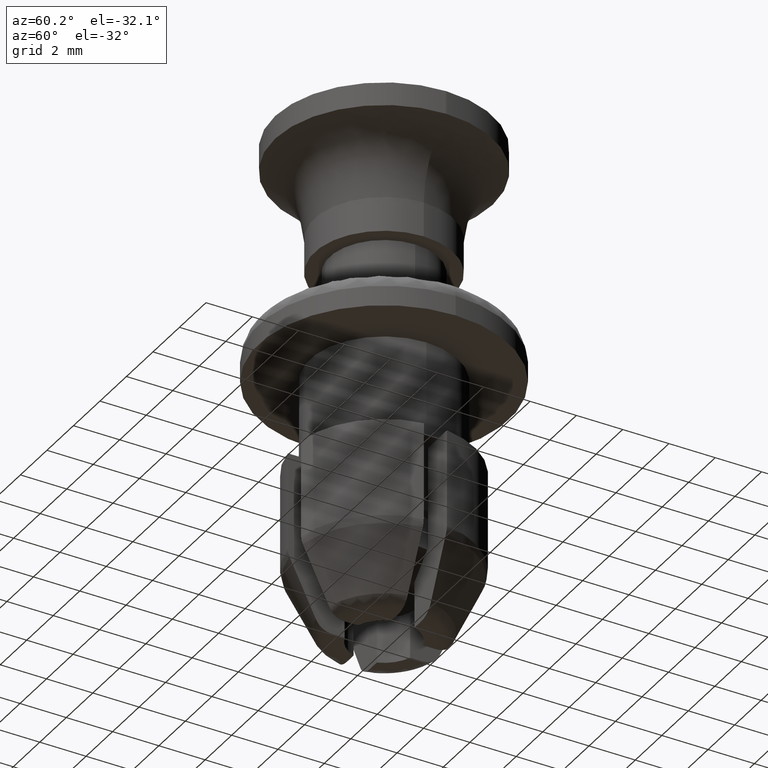
[diagram: clean part render]
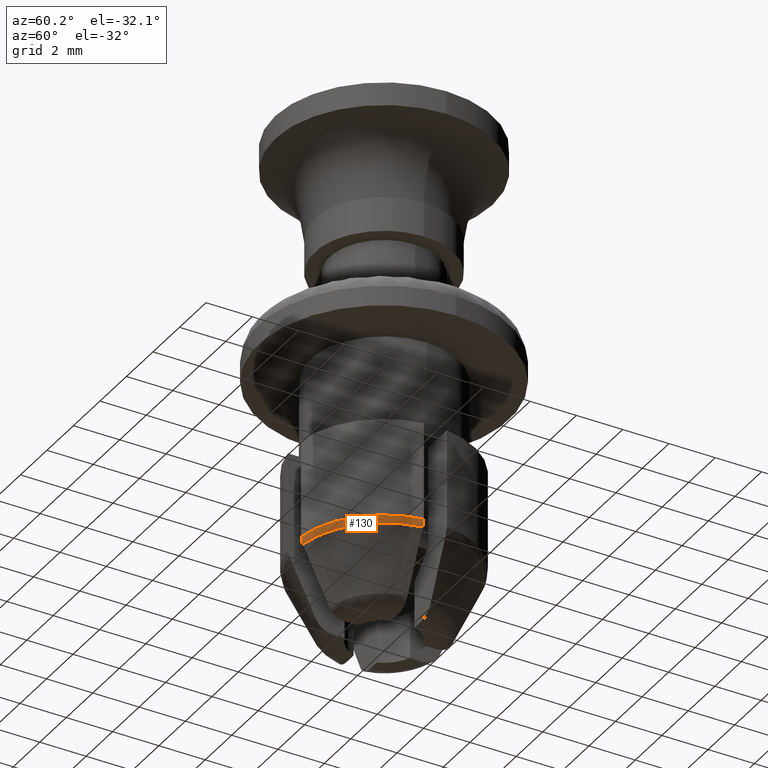
[diagram: same view with one face highlighted and labeled with its STEP entity id]
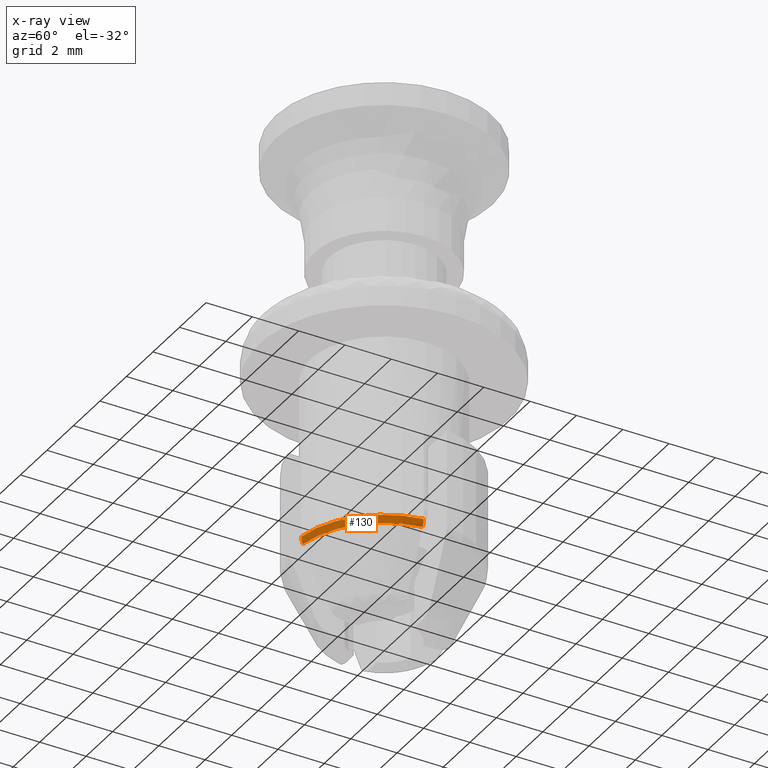
[diagram: x-ray of the same camera — body ghosted, the highlighted face saturated]
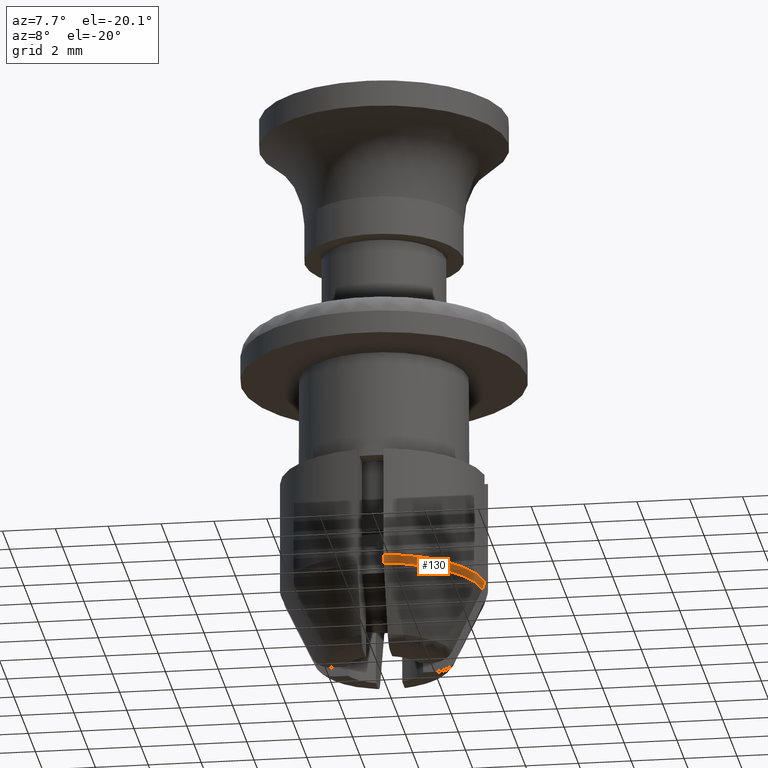
[diagram: same view with one face highlighted and labeled with its STEP entity id]
A machine part, auxiliary view. The second image highlights one B-rep face of the part: STEP entity #130.
The next image is the same camera in x-ray: the body ghosted, the highlighted face saturated — about 0% of this face is hidden behind the body in this view.
A second angle (auxiliary view) of the same face is appended — the face is thin or edge-on in the first view.
In plain terms, the highlighted face is a freeform B-spline surface patch.
Its self-contained STEP definition (entity closure, byte-faithful):
#130=ADVANCED_FACE('',(#373),#372,.T.);
#372=( BOUNDED_SURFACE() B_SPLINE_SURFACE( 2,2,((#1127,#1128,#1129),(#1130,#1131,#1132),(#1133,#1134,#1135)), .UNSPECIFIED.,.F.,.F.,.F.) B_SPLINE_SURFACE_WITH_KNOTS((3,3),(3,3),(-3.45587652759E-04,4.38582706572E-01),(5.42611465959E-02,1.35767719416E+00), .UNSPECIFIED. ) GEOMETRIC_REPRESENTATION_ITEM() RATIONAL_B_SPLINE_SURFACE(((9.82335015752E-01,7.78647726664E-01,9.82334278491E-01),(9.27160542922E-01,7.34913687716E-01,9.27159847071E-01),(9.18228176591E-01,7.27833448667E-01,9.18227487443E-01))) REPRESENTATION_ITEM('') SURFACE() );
#373=FACE_OUTER_BOUND('',#1136,.T.);
#1127=CARTESIAN_POINT('',(5.04588755566E-01,-3.86721994643E+00,-1.03338710596E+01));
#1128=CARTESIAN_POINT('',(3.47910899739E+00,-3.47910923951E+00,-1.03338710596E+01));
#1129=CARTESIAN_POINT('',(3.86721991132E+00,-5.04589024698E-01,-1.03338710596E+01));
#1130=CARTESIAN_POINT('',(5.04596194412E-01,-3.86727695851E+00,-1.05002407967E+01));
#1131=CARTESIAN_POINT('',(3.47916028778E+00,-3.47916052991E+00,-1.05002407967E+01));
#1132=CARTESIAN_POINT('',(3.86727692339E+00,-5.04596463548E-01,-1.05002407967E+01));
#1133=CARTESIAN_POINT('',(4.95493158585E-01,-3.79751035881E+00,-1.06510010336E+01));
#1134=CARTESIAN_POINT('',(3.41639540549E+00,-3.41639564325E+00,-1.06510010336E+01));
#1135=CARTESIAN_POINT('',(3.79751032433E+00,-4.95493422866E-01,-1.06510010336E+01));
#1136=EDGE_LOOP('',(#1734,#1735,#1736,#1737));
#1734=ORIENTED_EDGE('',*,*,#2085,.F.);
#1735=ORIENTED_EDGE('',*,*,#2105,.T.);
#1736=ORIENTED_EDGE('',*,*,#2069,.F.);
#1737=ORIENTED_EDGE('',*,*,#2106,.F.);
#2069=EDGE_CURVE('',#2628,#2635,#2636,.T.);
#2085=EDGE_CURVE('',#2738,#2745,#2746,.T.);
#2105=EDGE_CURVE('',#2738,#2635,#2876,.T.);
#2106=EDGE_CURVE('',#2745,#2628,#2882,.T.);
#2628=VERTEX_POINT('',#3801);
#2635=VERTEX_POINT('',#3806);
#2636=(BOUNDED_CURVE() B_SPLINE_CURVE(3,(#3807,#3808,#3809,#3810,#3811,#3812),.UNSPECIFIED.,.F.,.F.) B_SPLINE_CURVE_WITH_KNOTS((4,2,4),(4.60532861707E-03,4.76814485432E-03,4.93096109157E-03),.UNSPECIFIED.) CURVE() GEOMETRIC_REPRESENTATION_ITEM() RATIONAL_B_SPLINE_CURVE((1.00000000000E+00,1.00000000000E+00,1.00000000000E+00,1.00000000000E+00,1.00000000000E+00,1.00000000000E+00)) REPRESENTATION_ITEM('') );
#2738=VERTEX_POINT('',#3875);
#2745=VERTEX_POINT('',#3879);
#2746=(BOUNDED_CURVE() B_SPLINE_CURVE(3,(#3880,#3881,#3882,#3883,#3884,#3885),.UNSPECIFIED.,.F.,.F.) B_SPLINE_CURVE_WITH_KNOTS((4,2,4),(2.52815349468E-03,2.69109019946E-03,2.85402690424E-03),.UNSPECIFIED.) CURVE() GEOMETRIC_REPRESENTATION_ITEM() RATIONAL_B_SPLINE_CURVE((1.00000000000E+00,1.00000000000E+00,1.00000000000E+00,1.00000000000E+00,1.00000000000E+00,1.00000000000E+00)) REPRESENTATION_ITEM('') );
#2876=CIRCLE('',#3966,3.90000000000E+00);
#2882=CIRCLE('',#3970,3.82970000000E+00);
#3801=CARTESIAN_POINT('',(5.00000000000E-01,-3.79692007949E+00,-1.06510000000E+01));
#3806=CARTESIAN_POINT('',(5.00000000000E-01,-3.86781592116E+00,-1.03339000000E+01));
#3807=CARTESIAN_POINT('',(5.00000000000E-01,-3.79692007949E+00,-1.06510000000E+01));
#3808=CARTESIAN_POINT('',(5.00000000000E-01,-3.82025710276E+00,-1.06014221822E+01));
#3809=CARTESIAN_POINT('',(5.00000000000E-01,-3.83817154966E+00,-1.05489853033E+01));
#3810=CARTESIAN_POINT('',(5.00000000000E-01,-3.86188808504E+00,-1.04425175385E+01));
#3811=CARTESIAN_POINT('',(5.00000000000E-01,-3.86783284218E+00,-1.03885690052E+01));
#3812=CARTESIAN_POINT('',(5.00000000000E-01,-3.86781592116E+00,-1.03339000000E+01));
#3875=CARTESIAN_POINT('',(3.86781592116E+00,-5.00000000000E-01,-1.03339000000E+01));
#3879=CARTESIAN_POINT('',(3.79692007949E+00,-5.00000000000E-01,-1.06510000000E+01));
#3880=CARTESIAN_POINT('',(3.86781592116E+00,-5.00000000000E-01,-1.03339000000E+01));
#3881=CARTESIAN_POINT('',(3.86783296286E+00,-5.00000000000E-01,-1.03889588856E+01));
#3882=CARTESIAN_POINT('',(3.86180433911E+00,-5.00000000000E-01,-1.04430109235E+01));
#3883=CARTESIAN_POINT('',(3.83810279678E+00,-5.00000000000E-01,-1.05491757538E+01));
#3884=CARTESIAN_POINT('',(3.82009574163E+00,-5.00000000000E-01,-1.06017649823E+01));
#3885=CARTESIAN_POINT('',(3.79692007949E+00,-5.00000000000E-01,-1.06510000000E+01));
#3963=CARTESIAN_POINT('',(0.00000000000E+00,0.00000000000E+00,-1.03339000000E+01));
#3964=DIRECTION('',(0.00000000000E+00,0.00000000000E+00,-1.00000000000E+00));
#3965=DIRECTION('',(1.00000000000E+00,-0.00000000000E+00,-0.00000000000E+00));
#3966=AXIS2_PLACEMENT_3D('',#3963,#3964,#3965);
#3967=CARTESIAN_POINT('',(0.00000000000E+00,0.00000000000E+00,-1.06510000000E+01));
#3968=DIRECTION('',(0.00000000000E+00,0.00000000000E+00,-1.00000000000E+00));
#3969=DIRECTION('',(1.00000000000E+00,-0.00000000000E+00,-0.00000000000E+00));
#3970=AXIS2_PLACEMENT_3D('',#3967,#3968,#3969);